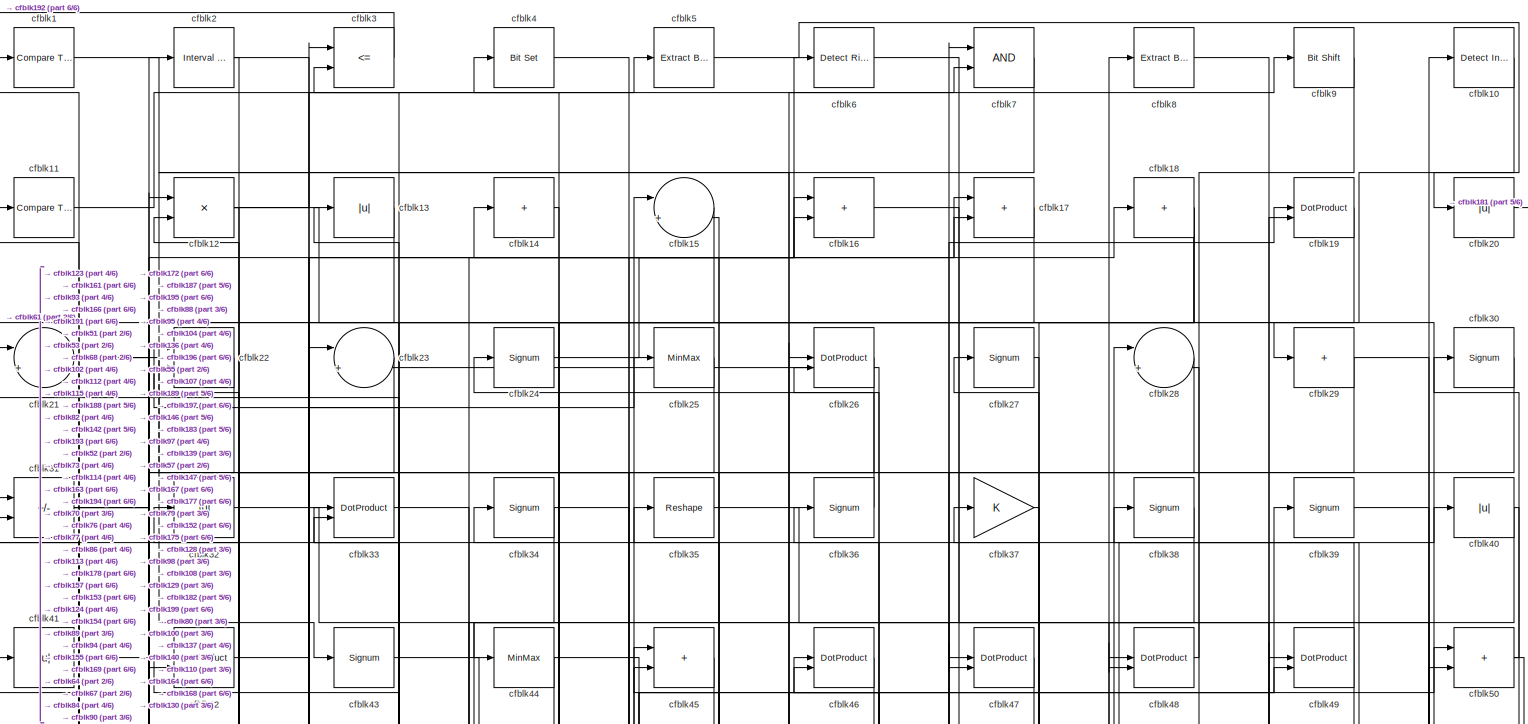
[diagram: root canvas - part 1/6, full width, top band]
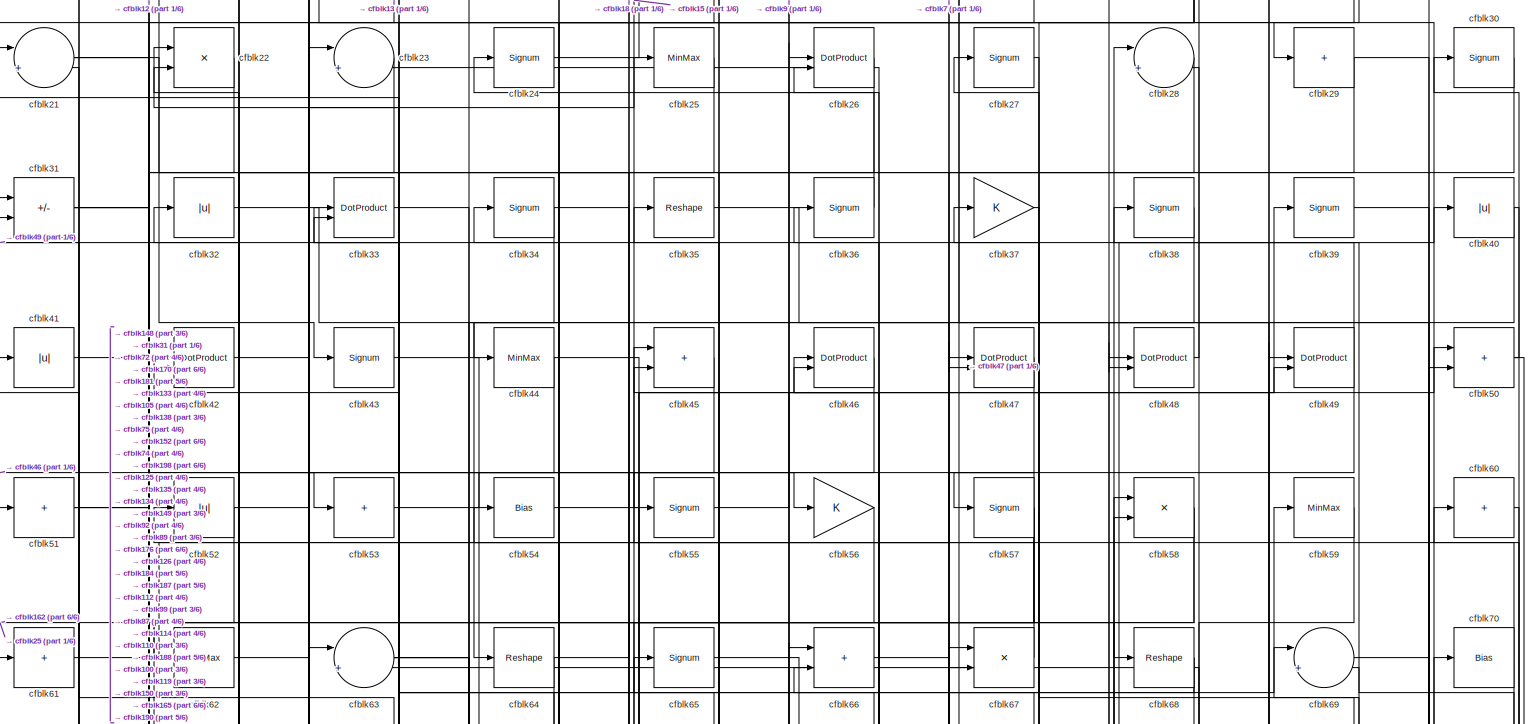
[diagram: root canvas - part 2/6, full width, top band]
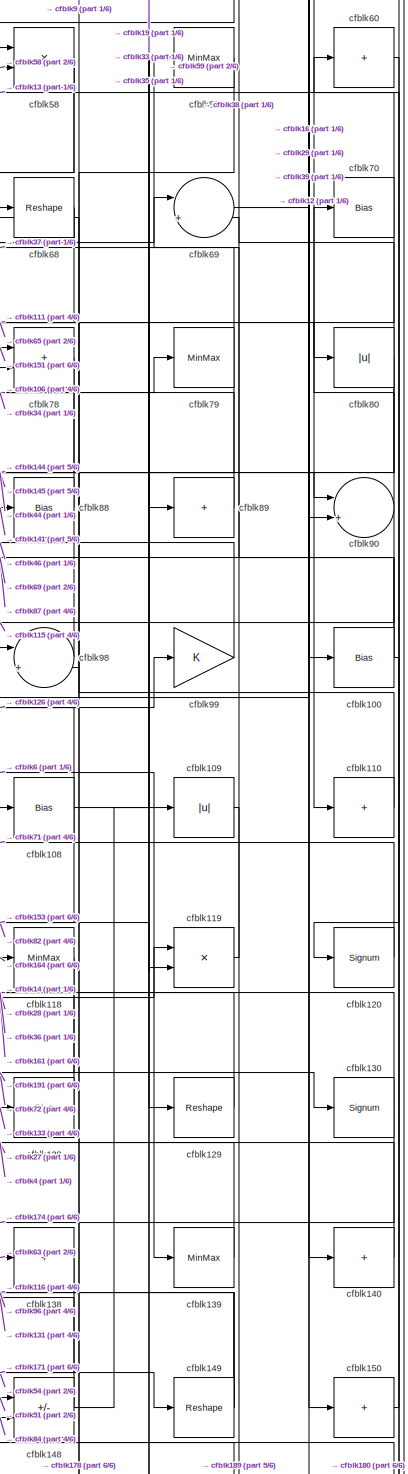
[diagram: root canvas - part 3/6, middle right region]
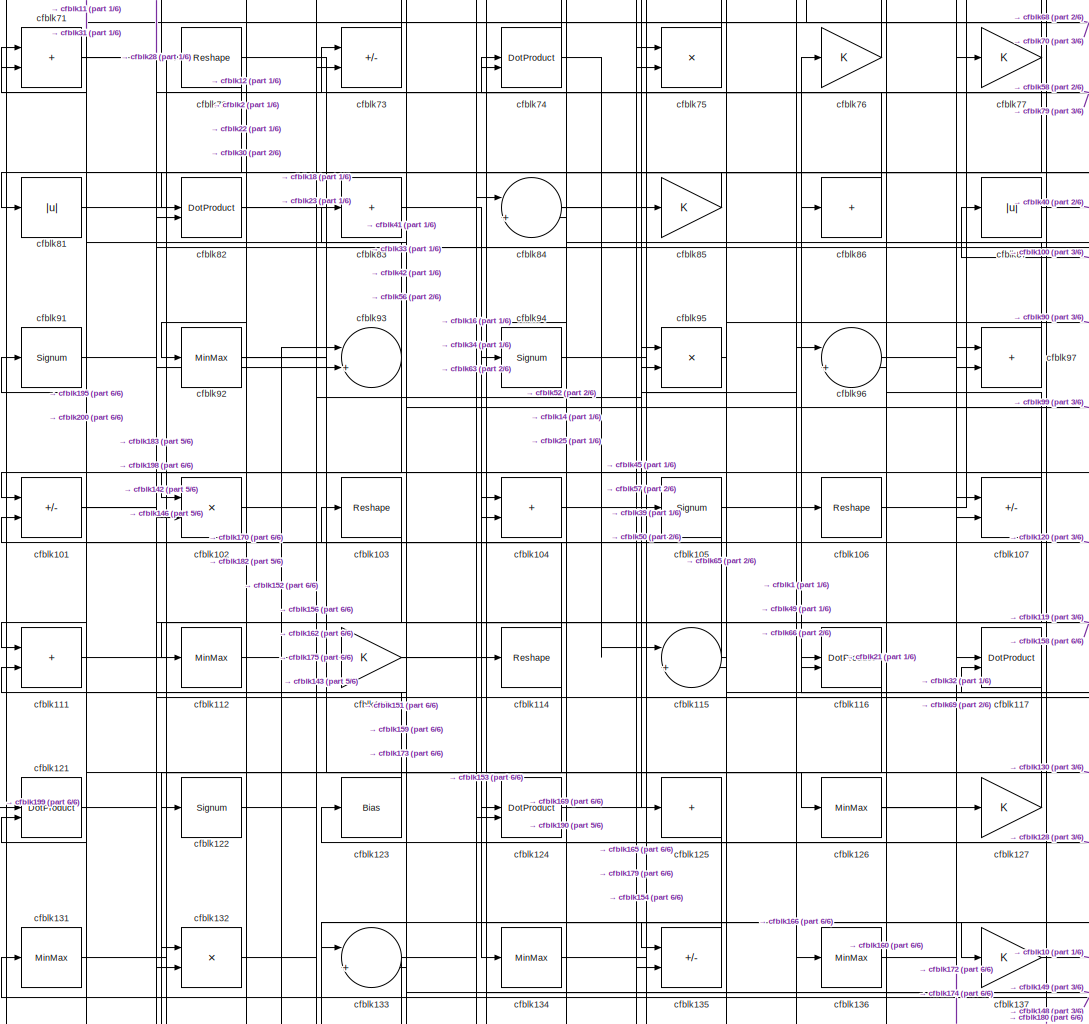
[diagram: root canvas - part 4/6, central region]
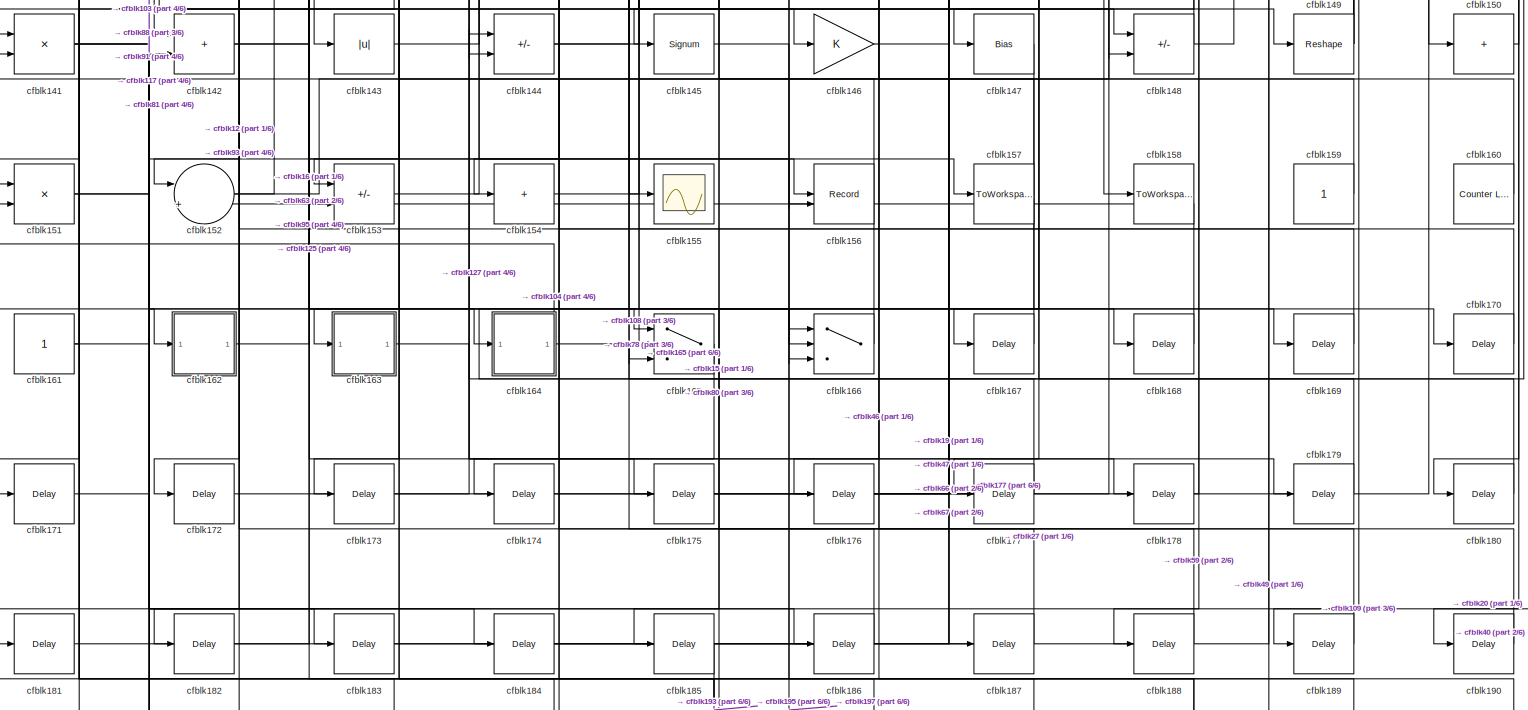
[diagram: root canvas - part 5/6, full width, bottom band]
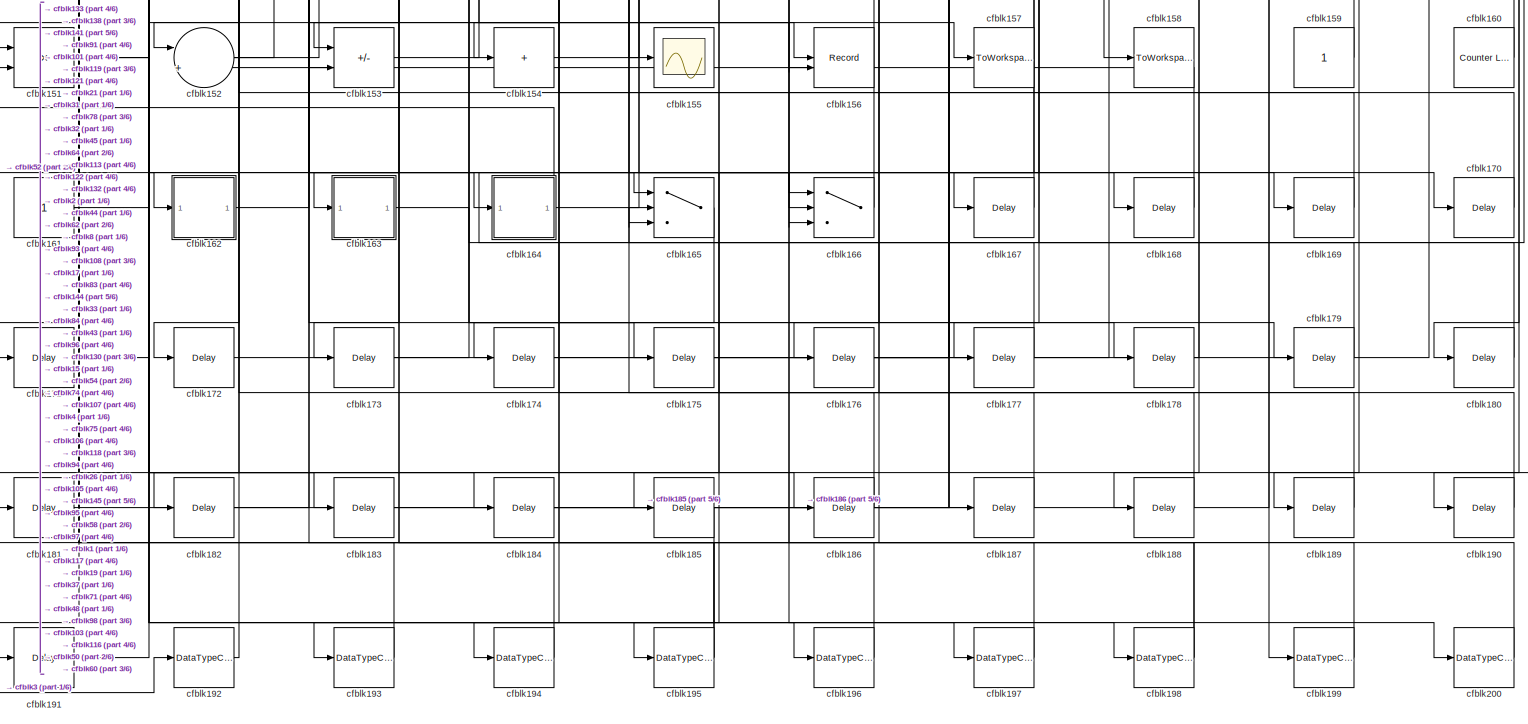
[diagram: root canvas - part 6/6, full width, bottom band]
MODEL slx_0df5e18a6117
KIND model
CONFIG AbsTol = auto
CONFIG EnableMultiTasking = off
CONFIG FixedStep = auto
CONFIG MaxStep = auto
CONFIG MinStep = auto
CONFIG RelTol = 1e-3
CONFIG SampleTimeConstraint = Unconstrained
CONFIG SolverName = VariableStepAuto
CONFIG StartTime = 0.0
CONFIG StopTime = 10.0
BLOCK [Reference] cfblk1  REF=hdlsllib/Logic and Bit
Operations/Compare
To Zero
  SourceBlock = hdlsllib/Logic and Bit\nOperations/Compare\nTo Zero
  SourceType = Compare To Zero
BLOCK [Reference] cfblk10  REF=simulink/Logic and Bit
Operations/Detect
Increase
  LibrarySourceBlock = hdlsllib/Logic and Bit\nOperations/Detect\nIncrease
  SourceBlock = simulink/Logic and Bit\nOperations/Detect\nIncrease
  SourceType = Detect Increase
BLOCK [Bias] cfblk100
  Bias = 0.0
  SaturateOnIntegerOverflow = off
BLOCK [Sum] cfblk101
  IconShape = rectangular
  Inputs = +-
BLOCK [Product] cfblk102
  Inputs = */
  RndMeth = Zero
  SaturateOnIntegerOverflow = on
BLOCK [Reshape] cfblk103
BLOCK [Sum] cfblk104
  IconShape = rectangular
BLOCK [Signum] cfblk105
BLOCK [Reshape] cfblk106
BLOCK [Sum] cfblk107
  IconShape = rectangular
  Inputs = +-
BLOCK [Bias] cfblk108
  Bias = 0.0
  SaturateOnIntegerOverflow = off
BLOCK [Abs] cfblk109
  SaturateOnIntegerOverflow = off
BLOCK [Reference] cfblk11  REF=hdlsllib/Logic and Bit
Operations/Compare
To Constant
  SourceBlock = hdlsllib/Logic and Bit\nOperations/Compare\nTo Constant
  SourceType = Compare To Constant
BLOCK [Sum] cfblk110
  IconShape = rectangular
  Inputs = +
BLOCK [Sum] cfblk111
  IconShape = rectangular
BLOCK [MinMax] cfblk112
BLOCK [Gain] cfblk113
BLOCK [Reshape] cfblk114
BLOCK [Sum] cfblk115
  Inputs = |++
BLOCK [DotProduct] cfblk116
  OutDataTypeStr = Inherit: Inherit via internal rule
BLOCK [DotProduct] cfblk117
  OutDataTypeStr = Inherit: Inherit via internal rule
BLOCK [MinMax] cfblk118
BLOCK [Product] cfblk119
  Inputs = */
  RndMeth = Zero
  SaturateOnIntegerOverflow = on
BLOCK [Product] cfblk12
  Inputs = */
  RndMeth = Zero
  SaturateOnIntegerOverflow = on
BLOCK [Signum] cfblk120
BLOCK [DotProduct] cfblk121
  OutDataTypeStr = Inherit: Inherit via internal rule
BLOCK [Signum] cfblk122
BLOCK [Bias] cfblk123
  Bias = 0.0
  SaturateOnIntegerOverflow = off
BLOCK [DotProduct] cfblk124
  OutDataTypeStr = Inherit: Inherit via internal rule
BLOCK [Sum] cfblk125
  IconShape = rectangular
  Inputs = +
BLOCK [MinMax] cfblk126
BLOCK [Gain] cfblk127
BLOCK [Bias] cfblk128
  Bias = 0.0
  SaturateOnIntegerOverflow = off
BLOCK [Reshape] cfblk129
BLOCK [Abs] cfblk13
  SaturateOnIntegerOverflow = off
BLOCK [Signum] cfblk130
BLOCK [MinMax] cfblk131
BLOCK [Product] cfblk132
  Inputs = */
  RndMeth = Zero
  SaturateOnIntegerOverflow = on
BLOCK [Sum] cfblk133
  Inputs = |++
BLOCK [MinMax] cfblk134
BLOCK [Sum] cfblk135
  IconShape = rectangular
  Inputs = +-
BLOCK [MinMax] cfblk136
BLOCK [Gain] cfblk137
BLOCK [Sum] cfblk138
  IconShape = rectangular
  Inputs = +
BLOCK [MinMax] cfblk139
BLOCK [Sum] cfblk14
  IconShape = rectangular
  Inputs = +
BLOCK [Sum] cfblk140
  IconShape = rectangular
  Inputs = +
BLOCK [Product] cfblk141
  Inputs = */
  RndMeth = Zero
  SaturateOnIntegerOverflow = on
BLOCK [Sum] cfblk142
  IconShape = rectangular
BLOCK [Abs] cfblk143
  SaturateOnIntegerOverflow = off
BLOCK [Sum] cfblk144
  IconShape = rectangular
  Inputs = +-
BLOCK [Signum] cfblk145
BLOCK [Gain] cfblk146
BLOCK [Bias] cfblk147
  Bias = 0.0
  SaturateOnIntegerOverflow = off
BLOCK [Sum] cfblk148
  IconShape = rectangular
  Inputs = +-
BLOCK [Reshape] cfblk149
BLOCK [Sum] cfblk15
  Inputs = |++
BLOCK [Sum] cfblk150
  IconShape = rectangular
  Inputs = +
BLOCK [Product] cfblk151
  Inputs = */
  RndMeth = Zero
  SaturateOnIntegerOverflow = on
BLOCK [Sum] cfblk152
  Inputs = |++
BLOCK [Sum] cfblk153
  IconShape = rectangular
  Inputs = +-
BLOCK [Sum] cfblk154
  IconShape = rectangular
  Inputs = +
BLOCK [Scope] cfblk155
  Floating = off
  NumInputPorts = 1
  ScopeSpecificationString = Simulink.scopes.TimeScopeBlockCfg('CurrentConfiguration', extmgr.ConfigurationSet(extmgr.Configuration('Core','General UI',true),extmgr.Configuration('Core','Source UI',true),extmgr.Configuration('Sources','WiredSimulink',true,'DataLoggingVariableName','ScopeData2','DataLoggingSaveFormat','Array','DataLoggingLimitDataPoints',true,'DataLoggingDecimation','1'),extmgr.Configuration('Visuals','Time Do...<+868ch>
BLOCK [Record] cfblk156
  CompatibilityTag = XY
  FileSettingsInternal = {"entries":[{"content":{"excelSettings":{"content":{},"type":"Streamout.ExcelSettings"}},"type":"Streamout.FileSettingStorage","uuid":""}],"packageUris":["http:\/\/schema.mathworks.com\/mf0\/streamout_blocks\/R2020a"],"version":"1.0"}
  Layout = [1 1]
  SignalsInternal = {"entries":[{"content":{},"type":"RecordBlkView.InputSignals","uuid":""}],"packageUris":["http:\/\/schema.mathworks.com\/mf0\/streamout_blocks\/R2020a"],"version":"1.0"}
  VisualizationBindings = {"xyplotplugin":{"info":[{"series":[{"bindingParametersList":[{"parameter":"X-Axis","signalID":4216,"signalName":"cfblk122"},{"parameter":"Y-Axis","signalID":4220,"signalName":"cfblk101"}],"seriesID":39729}],"subplotID":1}]}}
  st = -1
BLOCK [ToWorkspace] cfblk157
  MaxDataPoints = inf
  SampleTime = -1
  SaveFormat = Timeseries
  VariableName = simout
BLOCK [ToWorkspace] cfblk158
  MaxDataPoints = inf
  SampleTime = -1
  SaveFormat = Timeseries
  VariableName = simout
BLOCK [Constant] cfblk159
  SampleTime = -1
BLOCK [Sum] cfblk16
  IconShape = rectangular
BLOCK [Reference] cfblk160  REF=hdlsllib/Sources/Counter
Limited
  SourceBlock = hdlsllib/Sources/Counter\nLimited
  SourceType = Counter Limited
BLOCK [Constant] cfblk161
  SampleTime = -1
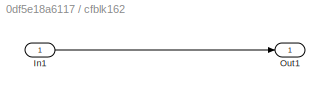
BLOCK [SubSystem] cfblk162
  LibrarySourceBlock = hdlsllib/Ports &\nSubsystems/Subsystem
BLOCK [Inport] cfblk162/In1
BLOCK [Outport] cfblk162/Out1
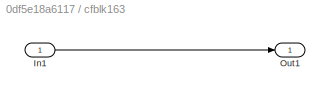
BLOCK [SubSystem] cfblk163
  LibrarySourceBlock = hdlsllib/Ports &\nSubsystems/Subsystem
BLOCK [Inport] cfblk163/In1
BLOCK [Outport] cfblk163/Out1
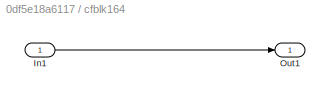
BLOCK [SubSystem] cfblk164
  LibrarySourceBlock = hdlsllib/Ports &\nSubsystems/Subsystem
BLOCK [Inport] cfblk164/In1
BLOCK [Outport] cfblk164/Out1
BLOCK [Switch] cfblk165
  InputSameDT = off
  SaturateOnIntegerOverflow = off
BLOCK [Switch] cfblk166
  InputSameDT = off
  SaturateOnIntegerOverflow = off
BLOCK [Delay] cfblk167
  InputPortMap = u0
  SampleTime = 1
BLOCK [Delay] cfblk168
  InputPortMap = u0
  SampleTime = 1
BLOCK [Delay] cfblk169
  InputPortMap = u0
  SampleTime = 1
BLOCK [Sum] cfblk17
  IconShape = rectangular
BLOCK [Delay] cfblk170
  InputPortMap = u0
  SampleTime = 1
BLOCK [Delay] cfblk171
  InputPortMap = u0
  SampleTime = 1
BLOCK [Delay] cfblk172
  InputPortMap = u0
  SampleTime = 1
BLOCK [Delay] cfblk173
  InputPortMap = u0
  SampleTime = 1
BLOCK [Delay] cfblk174
  InputPortMap = u0
  SampleTime = 1
BLOCK [Delay] cfblk175
  InputPortMap = u0
  SampleTime = 1
BLOCK [Delay] cfblk176
  InputPortMap = u0
  SampleTime = 1
BLOCK [Delay] cfblk177
  InputPortMap = u0
  SampleTime = 1
BLOCK [Delay] cfblk178
  InputPortMap = u0
  SampleTime = 1
BLOCK [Delay] cfblk179
  InputPortMap = u0
  SampleTime = 1
BLOCK [Sum] cfblk18
  IconShape = rectangular
  Inputs = +
BLOCK [Delay] cfblk180
  InputPortMap = u0
  SampleTime = 1
BLOCK [Delay] cfblk181
  InputPortMap = u0
  SampleTime = 1
BLOCK [Delay] cfblk182
  InputPortMap = u0
  SampleTime = 1
BLOCK [Delay] cfblk183
  InputPortMap = u0
  SampleTime = 1
BLOCK [Delay] cfblk184
  InputPortMap = u0
  SampleTime = 1
BLOCK [Delay] cfblk185
  InputPortMap = u0
  SampleTime = 1
BLOCK [Delay] cfblk186
  InputPortMap = u0
  SampleTime = 1
BLOCK [Delay] cfblk187
  InputPortMap = u0
  SampleTime = 1
BLOCK [Delay] cfblk188
  InputPortMap = u0
  SampleTime = 1
BLOCK [Delay] cfblk189
  InputPortMap = u0
  SampleTime = 1
BLOCK [DotProduct] cfblk19
  OutDataTypeStr = Inherit: Inherit via internal rule
BLOCK [Delay] cfblk190
  InputPortMap = u0
  SampleTime = 1
BLOCK [Delay] cfblk191
  InputPortMap = u0
  SampleTime = 1
BLOCK [DataTypeConversion] cfblk192
  OutDataTypeStr = uint8
  RndMeth = Floor
  SaturateOnIntegerOverflow = off
BLOCK [DataTypeConversion] cfblk193
  OutDataTypeStr = uint8
  RndMeth = Floor
  SaturateOnIntegerOverflow = off
BLOCK [DataTypeConversion] cfblk194
  OutDataTypeStr = uint8
  RndMeth = Floor
  SaturateOnIntegerOverflow = off
BLOCK [DataTypeConversion] cfblk195
  RndMeth = Floor
  SaturateOnIntegerOverflow = off
BLOCK [DataTypeConversion] cfblk196
  OutDataTypeStr = uint8
  RndMeth = Floor
  SaturateOnIntegerOverflow = off
BLOCK [DataTypeConversion] cfblk197
  OutDataTypeStr = uint8
  RndMeth = Floor
  SaturateOnIntegerOverflow = off
BLOCK [DataTypeConversion] cfblk198
  RndMeth = Floor
  SaturateOnIntegerOverflow = off
BLOCK [DataTypeConversion] cfblk199
  OutDataTypeStr = uint8
  RndMeth = Floor
  SaturateOnIntegerOverflow = off
BLOCK [Reference] cfblk2  REF=hdlsllib/Logic and Bit
Operations/Interval Test
  SourceBlock = hdlsllib/Logic and Bit\nOperations/Interval Test
  SourceType = Interval Test
BLOCK [Abs] cfblk20
  SaturateOnIntegerOverflow = off
BLOCK [DataTypeConversion] cfblk200
  OutDataTypeStr = uint8
  RndMeth = Floor
  SaturateOnIntegerOverflow = off
BLOCK [Sum] cfblk21
  Inputs = |++
BLOCK [Product] cfblk22
  Inputs = */
  RndMeth = Zero
  SaturateOnIntegerOverflow = on
BLOCK [Sum] cfblk23
  Inputs = |++
BLOCK [Signum] cfblk24
BLOCK [MinMax] cfblk25
BLOCK [DotProduct] cfblk26
  OutDataTypeStr = Inherit: Inherit via internal rule
BLOCK [Signum] cfblk27
BLOCK [Sum] cfblk28
  Inputs = |++
BLOCK [Sum] cfblk29
  IconShape = rectangular
  Inputs = +
BLOCK [RelationalOperator] cfblk3
  InputSameDT = off
  Operator = <=
  OutDataTypeStr = boolean
BLOCK [Signum] cfblk30
BLOCK [Sum] cfblk31
  IconShape = rectangular
  Inputs = +-
BLOCK [Abs] cfblk32
  SaturateOnIntegerOverflow = off
BLOCK [DotProduct] cfblk33
  OutDataTypeStr = Inherit: Inherit via internal rule
BLOCK [Signum] cfblk34
BLOCK [Reshape] cfblk35
BLOCK [Signum] cfblk36
BLOCK [Gain] cfblk37
BLOCK [Signum] cfblk38
BLOCK [Signum] cfblk39
BLOCK [Reference] cfblk4  REF=simulink/Logic and Bit
Operations/Bit Set
  LibrarySourceBlock = hdlsllib/Logic and Bit\nOperations/Bit Set
  SourceBlock = simulink/Logic and Bit\nOperations/Bit Set
  SourceType = Bit Set
BLOCK [Abs] cfblk40
  SaturateOnIntegerOverflow = off
BLOCK [Abs] cfblk41
  SaturateOnIntegerOverflow = off
BLOCK [DotProduct] cfblk42
  OutDataTypeStr = Inherit: Inherit via internal rule
BLOCK [Signum] cfblk43
BLOCK [MinMax] cfblk44
BLOCK [Sum] cfblk45
  IconShape = rectangular
BLOCK [DotProduct] cfblk46
  OutDataTypeStr = Inherit: Inherit via internal rule
BLOCK [DotProduct] cfblk47
  OutDataTypeStr = Inherit: Inherit via internal rule
BLOCK [DotProduct] cfblk48
  OutDataTypeStr = Inherit: Inherit via internal rule
BLOCK [DotProduct] cfblk49
  OutDataTypeStr = Inherit: Inherit via internal rule
BLOCK [Reference] cfblk5  REF=simulink/Logic and Bit
Operations/Extract Bits
  LibrarySourceBlock = hdlsllib/Logic and Bit\nOperations/Extract Bits
  SourceBlock = simulink/Logic and Bit\nOperations/Extract Bits
  SourceType = Extract Bits
BLOCK [Sum] cfblk50
  IconShape = rectangular
BLOCK [Sum] cfblk51
  IconShape = rectangular
  Inputs = +
BLOCK [Abs] cfblk52
  SaturateOnIntegerOverflow = off
BLOCK [Sum] cfblk53
  IconShape = rectangular
  Inputs = +
BLOCK [Bias] cfblk54
  Bias = 0.0
  SaturateOnIntegerOverflow = off
BLOCK [Signum] cfblk55
BLOCK [Gain] cfblk56
BLOCK [Signum] cfblk57
BLOCK [Product] cfblk58
  Inputs = */
  RndMeth = Zero
  SaturateOnIntegerOverflow = on
BLOCK [MinMax] cfblk59
BLOCK [Reference] cfblk6  REF=hdlsllib/Logic and Bit
Operations/Detect Rise
Positive
  SourceBlock = hdlsllib/Logic and Bit\nOperations/Detect Rise\nPositive
  SourceType = Detect Rise Positive
BLOCK [Sum] cfblk60
  IconShape = rectangular
  Inputs = +
BLOCK [Sum] cfblk61
  IconShape = rectangular
  Inputs = +
BLOCK [MinMax] cfblk62
BLOCK [Sum] cfblk63
  Inputs = |++
BLOCK [Reshape] cfblk64
BLOCK [Signum] cfblk65
BLOCK [Sum] cfblk66
  IconShape = rectangular
BLOCK [Product] cfblk67
  Inputs = */
  RndMeth = Zero
  SaturateOnIntegerOverflow = on
BLOCK [Reshape] cfblk68
BLOCK [Sum] cfblk69
  Inputs = |++
BLOCK [Logic] cfblk7
  AllPortsSameDT = off
  OutDataTypeStr = boolean
BLOCK [Bias] cfblk70
  Bias = 0.0
  SaturateOnIntegerOverflow = off
BLOCK [Sum] cfblk71
  IconShape = rectangular
BLOCK [Reshape] cfblk72
BLOCK [Sum] cfblk73
  IconShape = rectangular
  Inputs = +-
BLOCK [DotProduct] cfblk74
  OutDataTypeStr = Inherit: Inherit via internal rule
BLOCK [Product] cfblk75
  Inputs = */
  RndMeth = Zero
  SaturateOnIntegerOverflow = on
BLOCK [Gain] cfblk76
BLOCK [Gain] cfblk77
BLOCK [Sum] cfblk78
  IconShape = rectangular
BLOCK [MinMax] cfblk79
BLOCK [Reference] cfblk8  REF=simulink/Logic and Bit
Operations/Extract Bits
  LibrarySourceBlock = hdlsllib/Logic and Bit\nOperations/Extract Bits
  SourceBlock = simulink/Logic and Bit\nOperations/Extract Bits
  SourceType = Extract Bits
BLOCK [Abs] cfblk80
  SaturateOnIntegerOverflow = off
BLOCK [Abs] cfblk81
  SaturateOnIntegerOverflow = off
BLOCK [DotProduct] cfblk82
  OutDataTypeStr = Inherit: Inherit via internal rule
BLOCK [Sum] cfblk83
  IconShape = rectangular
  Inputs = +
BLOCK [Sum] cfblk84
  Inputs = |++
BLOCK [Gain] cfblk85
BLOCK [Sum] cfblk86
  IconShape = rectangular
  Inputs = +
BLOCK [Abs] cfblk87
  SaturateOnIntegerOverflow = off
BLOCK [Bias] cfblk88
  Bias = 0.0
  SaturateOnIntegerOverflow = off
BLOCK [Sum] cfblk89
  IconShape = rectangular
  Inputs = +
BLOCK [Reference] cfblk9  REF=hdlsllib/Logic and Bit
Operations/Bit Shift
  SourceBlock = hdlsllib/Logic and Bit\nOperations/Bit Shift
  SourceType = Bit Shift
BLOCK [Sum] cfblk90
  Inputs = |++
BLOCK [Signum] cfblk91
BLOCK [MinMax] cfblk92
BLOCK [Sum] cfblk93
  Inputs = |++
BLOCK [Signum] cfblk94
BLOCK [Product] cfblk95
  Inputs = */
  RndMeth = Zero
  SaturateOnIntegerOverflow = on
BLOCK [Sum] cfblk96
  Inputs = |++
BLOCK [Sum] cfblk97
  IconShape = rectangular
BLOCK [Sum] cfblk98
  Inputs = |++
BLOCK [Gain] cfblk99
NET cfblk100:1 -> cfblk120:1, cfblk69:2, cfblk87:1
NET cfblk101:1 -> cfblk104:1, cfblk156:2
LINE cfblk102:1 -> cfblk23:1
LINE cfblk103:1 -> cfblk142:2
LINE cfblk104:1 -> cfblk49:2
NET cfblk105:1 -> cfblk166:1, cfblk173:1
LINE cfblk106:1 -> cfblk79:1
NET cfblk107:1 -> cfblk101:1, cfblk165:3, cfblk23:2
NET cfblk108:1 -> cfblk153:1, cfblk19:2, cfblk33:2
LINE cfblk109:1 -> cfblk189:1
LINE cfblk10:1 -> cfblk29:1
LINE cfblk110:1 -> cfblk63:2
LINE cfblk111:1 -> cfblk126:1
LINE cfblk112:1 -> cfblk58:1
NET cfblk113:1 -> cfblk137:1, cfblk16:2
NET cfblk114:1 -> cfblk133:2, cfblk33:1
NET cfblk115:1 -> cfblk135:1, cfblk22:1, cfblk71:2
LINE cfblk116:1 -> cfblk132:1
LINE cfblk117:1 -> cfblk142:1
LINE cfblk118:1 -> cfblk191:1
LINE cfblk119:1 -> cfblk59:1
LINE cfblk11:1 -> cfblk5:1
LINE cfblk120:1 -> cfblk71:1
LINE cfblk121:1 -> cfblk198:1
LINE cfblk122:1 -> cfblk156:1
LINE cfblk123:1 -> cfblk11:1
LINE cfblk124:1 -> cfblk45:1
LINE cfblk125:1 -> cfblk143:1
NET cfblk126:1 -> cfblk69:1, cfblk77:1, cfblk99:1
LINE cfblk127:1 -> cfblk76:1
LINE cfblk128:1 -> cfblk28:1
LINE cfblk129:1 -> cfblk36:1
NET cfblk12:1 -> cfblk110:1, cfblk7:2, cfblk82:1
NET cfblk130:1 -> cfblk14:1, cfblk174:1
LINE cfblk131:1 -> cfblk73:1
LINE cfblk132:1 -> cfblk175:1
NET cfblk133:1 -> cfblk128:1, cfblk151:1
LINE cfblk134:1 -> cfblk50:1
LINE cfblk135:1 -> cfblk123:1
LINE cfblk136:1 -> cfblk107:1
LINE cfblk137:1 -> cfblk10:1
LINE cfblk138:1 -> cfblk171:1
LINE cfblk139:1 -> cfblk27:1
LINE cfblk13:1 -> cfblk61:1
LINE cfblk140:1 -> cfblk4:1
NET cfblk141:1 -> cfblk184:1, cfblk186:1, cfblk88:1
NET cfblk142:1 -> cfblk16:1, cfblk95:2
LINE cfblk143:1 -> cfblk127:1
NET cfblk144:1 -> cfblk108:1, cfblk78:2
LINE cfblk145:1 -> cfblk197:1
LINE cfblk146:1 -> cfblk19:1
LINE cfblk147:1 -> cfblk185:1
NET cfblk148:1 -> cfblk109:1, cfblk131:1
NET cfblk149:1 -> cfblk111:2, cfblk116:2, cfblk96:2
LINE cfblk14:1 -> cfblk124:1
LINE cfblk150:1 -> cfblk60:1
NET cfblk151:1 -> cfblk196:1, cfblk78:1
NET cfblk152:1 -> cfblk8:1, cfblk93:1
LINE cfblk153:1 -> cfblk96:1
LINE cfblk154:1 -> cfblk106:1
LINE cfblk159:1 -> cfblk103:1
LINE cfblk15:1 -> cfblk154:1
LINE cfblk160:1 -> cfblk116:1
NET cfblk161:1 -> cfblk119:1, cfblk21:2
LINE cfblk162/In1:1 -> cfblk162/Out1:1
LINE cfblk162:1 -> cfblk113:1
LINE cfblk163/In1:1 -> cfblk163/Out1:1
LINE cfblk163:1 -> cfblk179:1
LINE cfblk164/In1:1 -> cfblk164/Out1:1
NET cfblk164:1 -> cfblk118:1, cfblk151:2
LINE cfblk165:1 -> cfblk194:1
LINE cfblk166:1 -> cfblk95:1
LINE cfblk167:1 -> cfblk1:1
LINE cfblk168:1 -> cfblk152:2
LINE cfblk169:1 -> cfblk74:2
LINE cfblk16:1 -> cfblk90:2
LINE cfblk170:1 -> cfblk101:2
LINE cfblk171:1 -> cfblk200:1
LINE cfblk172:1 -> cfblk97:2
LINE cfblk173:1 -> cfblk84:1
LINE cfblk174:1 -> cfblk107:2
LINE cfblk175:1 -> cfblk48:1
LINE cfblk176:1 -> cfblk50:2
LINE cfblk177:1 -> cfblk144:1
LINE cfblk178:1 -> cfblk98:1
LINE cfblk179:1 -> cfblk75:1
LINE cfblk17:1 -> cfblk163:1
LINE cfblk180:1 -> cfblk117:2
LINE cfblk181:1 -> cfblk63:1
LINE cfblk182:1 -> cfblk49:1
LINE cfblk183:1 -> cfblk47:1
LINE cfblk184:1 -> cfblk67:1
LINE cfblk185:1 -> cfblk193:1
LINE cfblk186:1 -> cfblk165:2
LINE cfblk187:1 -> cfblk15:2
LINE cfblk188:1 -> cfblk12:2
LINE cfblk189:1 -> cfblk46:2
NET cfblk18:1 -> cfblk44:1, cfblk73:2, cfblk82:2
LINE cfblk190:1 -> cfblk104:2
LINE cfblk191:1 -> cfblk2:1
LINE cfblk192:1 -> cfblk32:1
LINE cfblk193:1 -> cfblk3:1
LINE cfblk194:1 -> cfblk3:2
NET cfblk195:1 -> cfblk141:2, cfblk91:1
LINE cfblk196:1 -> cfblk26:1
LINE cfblk197:1 -> cfblk26:2
NET cfblk198:1 -> cfblk54:1, cfblk83:1
LINE cfblk199:1 -> cfblk121:1
LINE cfblk19:1 -> cfblk177:1
LINE cfblk1:1 -> cfblk136:1
LINE cfblk200:1 -> cfblk121:2
LINE cfblk20:1 -> cfblk181:1
NET cfblk21:1 -> cfblk155:1, cfblk169:1
LINE cfblk22:1 -> cfblk42:2
LINE cfblk23:1 -> cfblk112:1
LINE cfblk24:1 -> cfblk6:1
LINE cfblk25:1 -> cfblk94:1
LINE cfblk26:1 -> cfblk195:1
LINE cfblk27:1 -> cfblk147:1
LINE cfblk28:1 -> cfblk102:2
NET cfblk29:1 -> cfblk140:1, cfblk47:2
NET cfblk2:1 -> cfblk102:1, cfblk164:1
LINE cfblk30:1 -> cfblk92:1
NET cfblk31:1 -> cfblk166:3, cfblk53:1, cfblk68:1
LINE cfblk32:1 -> cfblk97:1
LINE cfblk33:1 -> cfblk178:1
NET cfblk34:1 -> cfblk124:2, cfblk80:1
LINE cfblk35:1 -> cfblk129:1
LINE cfblk36:1 -> cfblk24:1
LINE cfblk37:1 -> cfblk167:1
LINE cfblk38:1 -> cfblk48:2
LINE cfblk39:1 -> cfblk100:1
LINE cfblk3:1 -> cfblk192:1
NET cfblk40:1 -> cfblk190:1, cfblk64:1
LINE cfblk41:1 -> cfblk17:1
LINE cfblk42:1 -> cfblk17:2
LINE cfblk43:1 -> cfblk157:1
NET cfblk44:1 -> cfblk153:2, cfblk90:1
LINE cfblk45:1 -> cfblk172:1
LINE cfblk46:1 -> cfblk51:1
LINE cfblk47:1 -> cfblk57:1
LINE cfblk48:1 -> cfblk28:2
NET cfblk49:1 -> cfblk31:2, cfblk67:2
LINE cfblk4:1 -> cfblk168:1
NET cfblk50:1 -> cfblk165:1, cfblk30:1
NET cfblk51:1 -> cfblk12:1, cfblk148:1
NET cfblk52:1 -> cfblk162:1, cfblk25:1
LINE cfblk53:1 -> cfblk56:1
LINE cfblk54:1 -> cfblk149:1
LINE cfblk55:1 -> cfblk9:1
LINE cfblk56:1 -> cfblk133:1
NET cfblk57:1 -> cfblk125:1, cfblk135:2, cfblk55:1, cfblk62:1
NET cfblk58:1 -> cfblk176:1, cfblk72:1
LINE cfblk59:1 -> cfblk188:1
LINE cfblk5:1 -> cfblk20:1
LINE cfblk60:1 -> cfblk180:1
LINE cfblk61:1 -> cfblk7:1
LINE cfblk62:1 -> cfblk170:1
NET cfblk63:1 -> cfblk105:1, cfblk138:1, cfblk75:2
NET cfblk64:1 -> cfblk152:1, cfblk18:1
LINE cfblk65:1 -> cfblk89:1
LINE cfblk66:1 -> cfblk187:1
LINE cfblk67:1 -> cfblk15:1
NET cfblk68:1 -> cfblk114:1, cfblk66:2
LINE cfblk69:1 -> cfblk150:1
LINE cfblk6:1 -> cfblk139:1
NET cfblk70:1 -> cfblk111:1, cfblk13:1
NET cfblk71:1 -> cfblk158:1, cfblk93:2
NET cfblk72:1 -> cfblk130:1, cfblk132:2
LINE cfblk73:1 -> cfblk41:1
NET cfblk74:1 -> cfblk115:1, cfblk52:1
LINE cfblk75:1 -> cfblk65:1
LINE cfblk76:1 -> cfblk21:1
NET cfblk77:1 -> cfblk122:1, cfblk22:2
LINE cfblk78:1 -> cfblk141:1
NET cfblk79:1 -> cfblk37:1, cfblk84:2
LINE cfblk7:1 -> cfblk43:1
NET cfblk80:1 -> cfblk144:2, cfblk145:1, cfblk38:1
LINE cfblk81:1 -> cfblk146:1
NET cfblk82:1 -> cfblk119:2, cfblk86:1
LINE cfblk83:1 -> cfblk134:1
NET cfblk84:1 -> cfblk148:2, cfblk39:1
LINE cfblk85:1 -> cfblk81:1
LINE cfblk86:1 -> cfblk42:1
LINE cfblk87:1 -> cfblk40:1
LINE cfblk88:1 -> cfblk35:1
LINE cfblk89:1 -> cfblk34:1
LINE cfblk8:1 -> cfblk199:1
NET cfblk90:1 -> cfblk115:2, cfblk70:1
LINE cfblk91:1 -> cfblk183:1
NET cfblk92:1 -> cfblk66:1, cfblk85:1
NET cfblk93:1 -> cfblk182:1, cfblk31:1
LINE cfblk94:1 -> cfblk166:2
LINE cfblk95:1 -> cfblk45:2
LINE cfblk96:1 -> cfblk117:1
LINE cfblk97:1 -> cfblk74:1
LINE cfblk98:1 -> cfblk46:1
LINE cfblk99:1 -> cfblk58:2
LINE cfblk9:1 -> cfblk98:2
note: NET lines group one-source signal fan-out (src -> all destinations, sorted); 1:1 wires keep LINE
